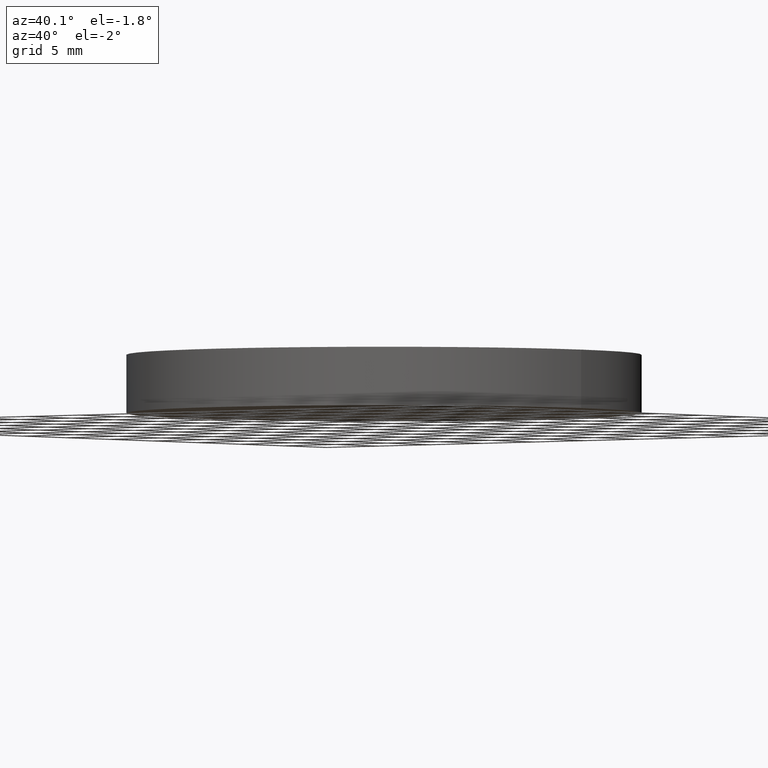
[diagram: clean part render]
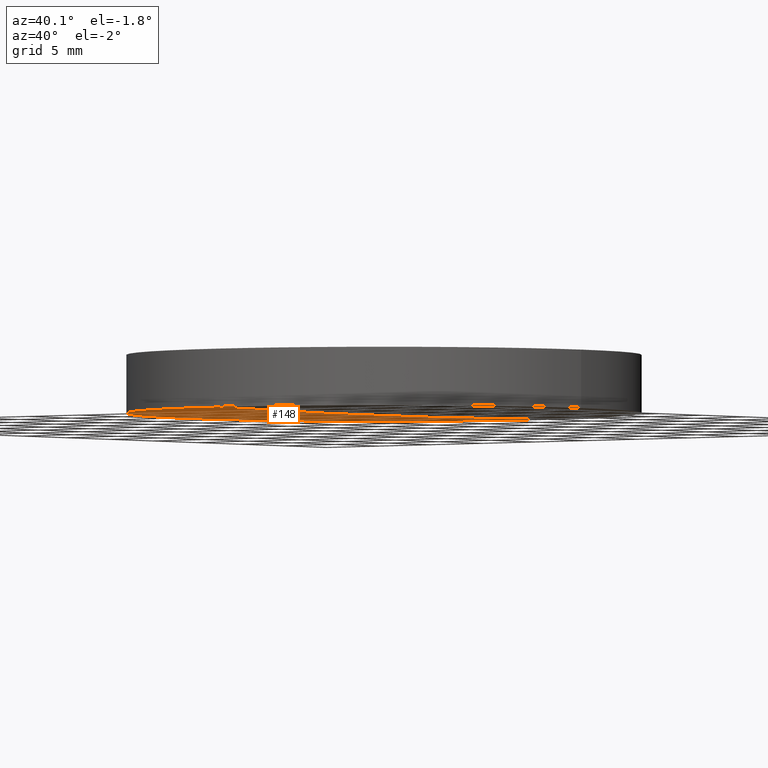
[diagram: same view with one face highlighted and labeled with its STEP entity id]
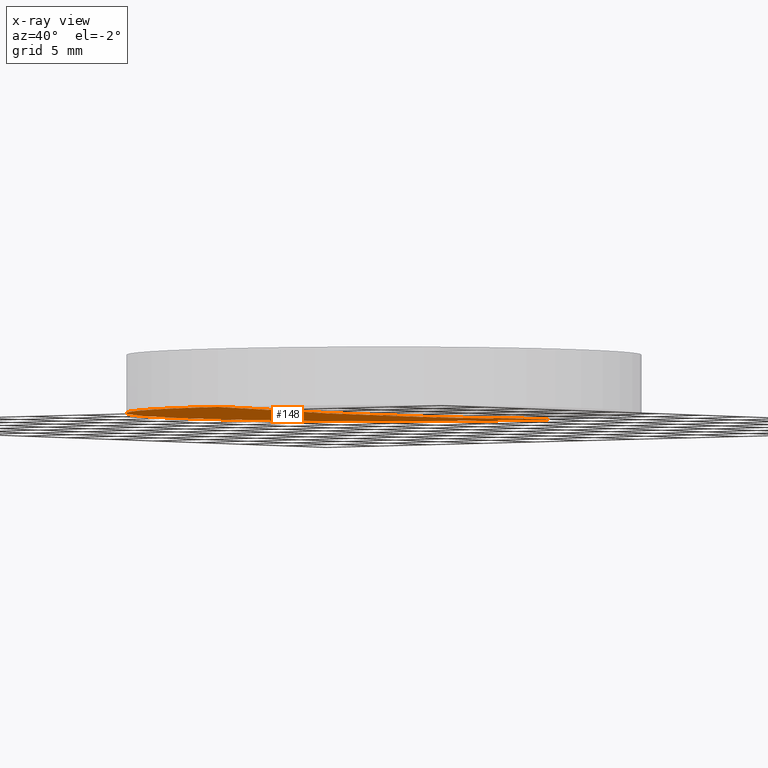
[diagram: x-ray of the same camera — body ghosted, the highlighted face saturated]
A machine part, auxiliary view. The second image highlights one B-rep face of the part: STEP entity #148.
The next image is the same camera in x-ray: the body ghosted, the highlighted face saturated — about 0% of this face is hidden behind the body in this view.
In plain terms, the highlighted face is a freeform B-spline surface patch.
Its self-contained STEP definition (entity closure, byte-faithful):
#10 = EDGE_CURVE ( 'NONE', #291, #283, #122, .T. ) ;
#18 = CARTESIAN_POINT ( 'NONE',  ( -6.387323224292093600, 19.27856889239533100, 0.1953444282029825600 ) ) ;
#19 = VERTEX_POINT ( 'NONE', #228 ) ;
#23 = CARTESIAN_POINT ( 'NONE',  ( -19.16559638772781300, 6.427069381477029000, 0.1279245254775544000 ) ) ;
#43 = AXIS2_PLACEMENT_3D ( 'NONE', #220, #140, #88 ) ;
#44 = ORIENTED_EDGE ( 'NONE', *, *, #141, .F. ) ;
#48 = CARTESIAN_POINT ( 'NONE',  ( -6.389072263540289700, 6.427069381477029900, -0.06512372367216469300 ) ) ;
#65 = ORIENTED_EDGE ( 'NONE', *, *, #10, .T. ) ;
#71 = CARTESIAN_POINT ( 'NONE',  ( -4.662936703425659800E-015, -8.881784197001250400E-016, 0.1907393743477660000 ) ) ;
#88 = DIRECTION ( 'NONE',  ( 1.000000000000000000, 0.0000000000000000000, 0.0000000000000000000 ) ) ;
#95 = EDGE_LOOP ( 'NONE', ( #44, #206, #65 ) ) ;
#99 = CARTESIAN_POINT ( 'NONE',  ( -19.16559638772781300, -6.427069381476893100, 0.1279245254775530900 ) ) ;
#108 = CARTESIAN_POINT ( 'NONE',  ( -1.212149162115420200E-013, 19.05000000000057600, 0.1907393743477681600 ) ) ;
#109 = CARTESIAN_POINT ( 'NONE',  ( -3.469446951953615200E-013, -6.427069381476893100, -0.06512372367216910700 ) ) ;
#122 = CIRCLE ( 'NONE', #152, 19.05000000000000100 ) ;
#134 = CARTESIAN_POINT ( 'NONE',  ( -6.387323224292093600, -19.27856889239519600, 0.1953444282029825600 ) ) ;
#140 = DIRECTION ( 'NONE',  ( -0.0000000000000000000, -0.0000000000000000000, -1.000000000000000000 ) ) ;
#141 = EDGE_CURVE ( 'NONE', #19, #283, #192, .T. ) ;
#143 =( BOUNDED_SURFACE ( )  B_SPLINE_SURFACE ( 3, 3, ( 
 ( #241, #231, #134, #282 ),
 ( #99, #179, #173, #109 ),
 ( #23, #245, #48, #193 ),
 ( #196, #159, #18, #293 ) ),
 .UNSPECIFIED., .F., .F., .T. ) 
 B_SPLINE_SURFACE_WITH_KNOTS ( ( 4, 4 ),
 ( 4, 4 ),
 ( 0.0000000000000000000, 1.000000000000000000 ),
 ( 0.0000000000000000000, 1.000000000000000000 ),
 .UNSPECIFIED. ) 
 GEOMETRIC_REPRESENTATION_ITEM ( )  RATIONAL_B_SPLINE_SURFACE ( (
 ( 1.000000000000000000, 0.9999661831806077000, 0.9999661831806077000, 1.000000000000000000),
 ( 0.9998631179117070100, 0.9998293057212315200, 0.9998293057212315200, 0.9998631179117070100),
 ( 0.9998631179117070100, 0.9998293057212315200, 0.9998293057212315200, 0.9998631179117070100),
 ( 1.000000000000000000, 0.9999661831806077000, 0.9999661831806077000, 1.000000000000000000) ) ) 
 REPRESENTATION_ITEM ( '' )  SURFACE ( )  );
#148 = ADVANCED_FACE ( 'NONE', ( #160 ), #143, .T. ) ;
#152 = AXIS2_PLACEMENT_3D ( 'NONE', #71, #208, #272 ) ;
#156 = CARTESIAN_POINT ( 'NONE',  ( 1.136868377216160000E-013, 1.136868377216160000E-013, 951.3999999999999800 ) ) ;
#159 = CARTESIAN_POINT ( 'NONE',  ( -12.77432245015003100, 19.27856889239533100, 0.2596784041945582900 ) ) ;
#160 = FACE_OUTER_BOUND ( 'NONE', #95, .T. ) ;
#173 = CARTESIAN_POINT ( 'NONE',  ( -6.389072263540289700, -6.427069381476894900, -0.06512372367216598400 ) ) ;
#179 = CARTESIAN_POINT ( 'NONE',  ( -12.77782043992600500, -6.427069381476894900, -0.0007721311227536179400 ) ) ;
#180 = CARTESIAN_POINT ( 'NONE',  ( -19.05000000000000400, 1.444773732675583000E-015, 0.1907393743477660000 ) ) ;
#192 = CIRCLE ( 'NONE', #207, 951.3999999999999800 ) ;
#193 = CARTESIAN_POINT ( 'NONE',  ( -3.469446951953615200E-013, 6.427069381477029000, -0.06512372367216780200 ) ) ;
#196 = CARTESIAN_POINT ( 'NONE',  ( -19.16034971357630900, 19.27856889239533400, 0.3883398294663997800 ) ) ;
#197 = DIRECTION ( 'NONE',  ( 0.0000000000000000000, -1.000000000000000000, -2.333872240120152600E-016 ) ) ;
#206 = ORIENTED_EDGE ( 'NONE', *, *, #216, .T. ) ;
#207 = AXIS2_PLACEMENT_3D ( 'NONE', #156, #259, #197 ) ;
#208 = DIRECTION ( 'NONE',  ( -0.0000000000000000000, -0.0000000000000000000, -1.000000000000000000 ) ) ;
#216 = EDGE_CURVE ( 'NONE', #19, #291, #257, .T. ) ;
#220 = CARTESIAN_POINT ( 'NONE',  ( -4.662936703425659800E-015, -8.881784197001250400E-016, 0.1907393743477660000 ) ) ;
#228 = CARTESIAN_POINT ( 'NONE',  ( -1.212149162115420200E-013, -19.05000000000046300, 0.1907393743477681600 ) ) ;
#231 = CARTESIAN_POINT ( 'NONE',  ( -12.77432245015003100, -19.27856889239519600, 0.2596784041945582900 ) ) ;
#241 = CARTESIAN_POINT ( 'NONE',  ( -19.16034971357630900, -19.27856889239519900, 0.3883398294663997800 ) ) ;
#245 = CARTESIAN_POINT ( 'NONE',  ( -12.77782043992600500, 6.427069381477029900, -0.0007721311227523168900 ) ) ;
#257 = CIRCLE ( 'NONE', #43, 19.05000000000000100 ) ;
#259 = DIRECTION ( 'NONE',  ( 1.000000000000000000, 6.034084082518540200E-032, -2.469506591837139800E-016 ) ) ;
#272 = DIRECTION ( 'NONE',  ( 1.000000000000000000, 0.0000000000000000000, 0.0000000000000000000 ) ) ;
#282 = CARTESIAN_POINT ( 'NONE',  ( -3.469446951953614200E-013, -19.27856889239519900, 0.1953444282029795100 ) ) ;
#283 = VERTEX_POINT ( 'NONE', #108 ) ;
#291 = VERTEX_POINT ( 'NONE', #180 ) ;
#293 = CARTESIAN_POINT ( 'NONE',  ( -3.469446951953614200E-013, 19.27856889239533400, 0.1953444282029795100 ) ) ;